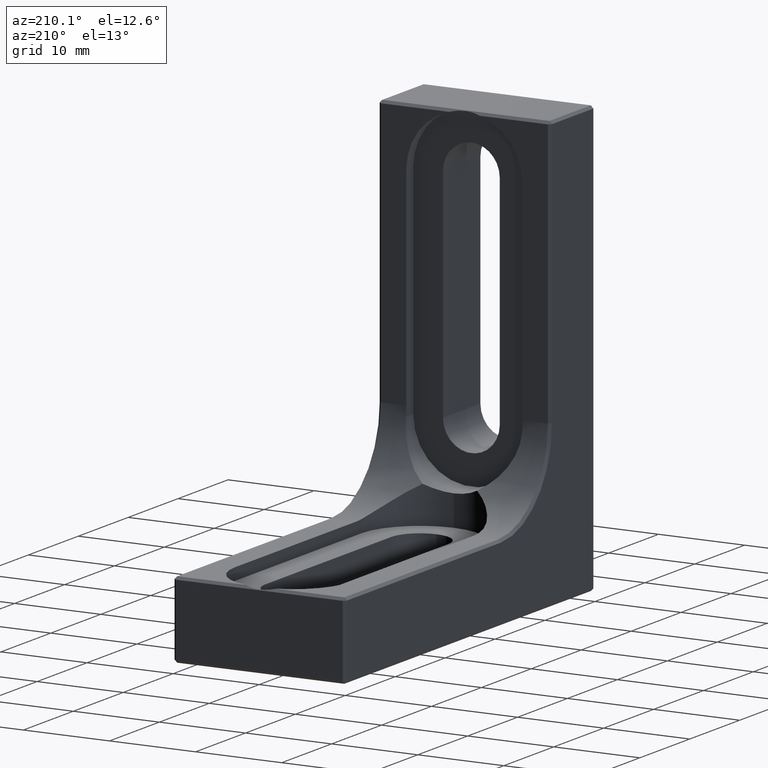
[diagram: clean part render]
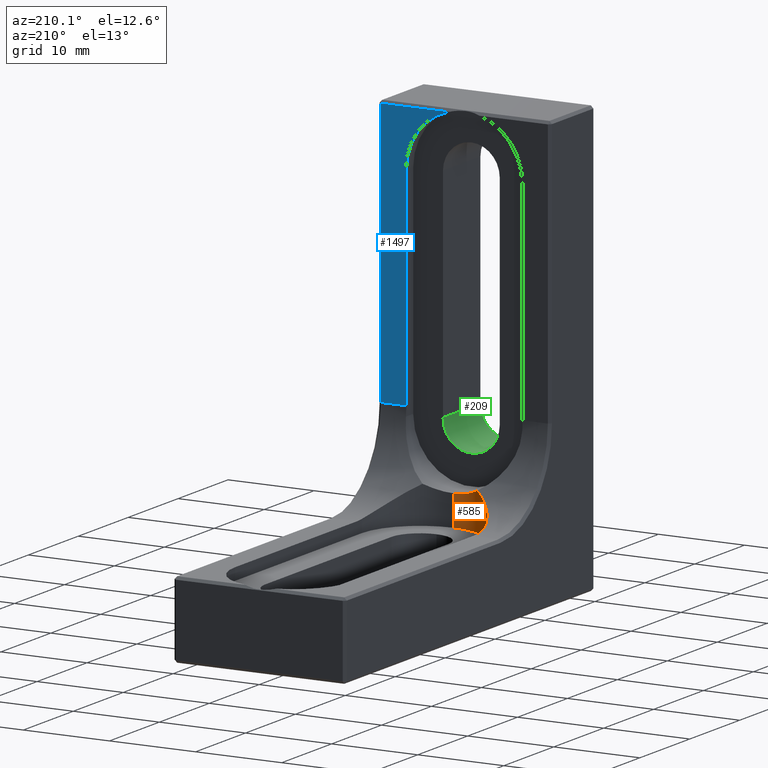
[diagram: same view with three faces highlighted in distinct colors, each labeled with its STEP entity id]
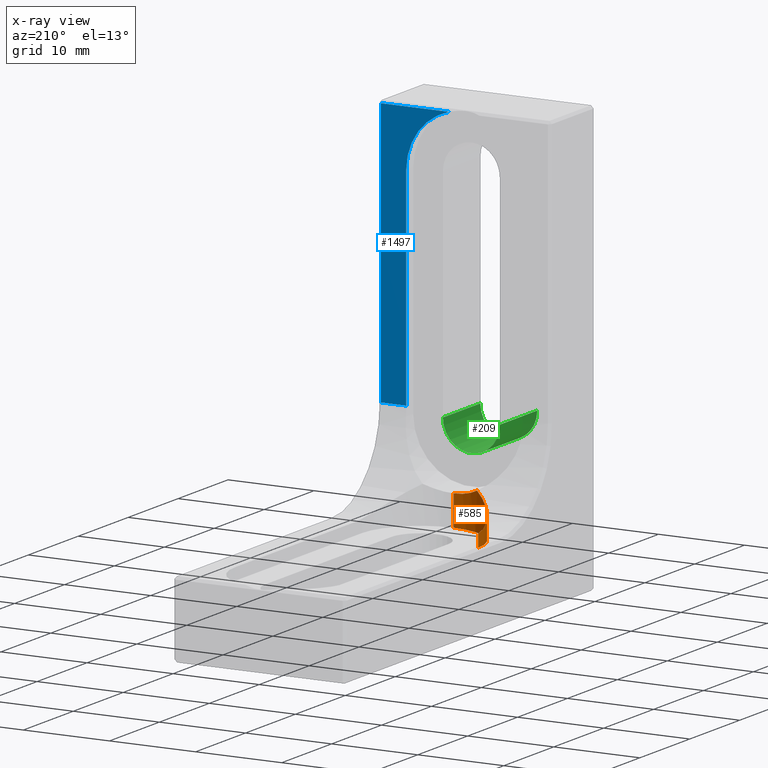
[diagram: x-ray of the same camera — body ghosted, the three highlighted faces saturated]
A machine part, auxiliary view with three faces highlighted in distinct colors.
The next image is the same camera in x-ray (body ghosted, the three faces saturated) — at least one of them is partly hidden behind the body in this view.
Their STEP definitions:

[orange] entity #585 — the highlighted cylindrical surface (partial cylindrical patch) has radius 6.75 mm, axis along (-0, 0, 1).
#6 =( BOUNDED_CURVE ( )  B_SPLINE_CURVE ( 3, ( #1779, #149, #741, #1630 ),
 .UNSPECIFIED., .F., .T. ) 
 B_SPLINE_CURVE_WITH_KNOTS ( ( 4, 4 ),
 ( 2.653270293399297763, 3.141592653589793116 ),
 .UNSPECIFIED. ) 
 CURVE ( )  GEOMETRIC_REPRESENTATION_ITEM ( )  RATIONAL_B_SPLINE_CURVE ( ( 1.000000000000000000, 0.9802269631457370958, 0.9802269631457370958, 1.000000000000000000 ) ) 
 REPRESENTATION_ITEM ( '' )  );
#11 = DIRECTION ( 'NONE',  ( -0.000000000000000000, 2.220446049250312588E-16, 1.000000000000000000 ) ) ;
#79 = CARTESIAN_POINT ( 'NONE',  ( 0.000000000000000000, 17.78999999999999204, 7.499999999999992895 ) ) ;
#84 = CARTESIAN_POINT ( 'NONE',  ( -6.750000000000000888, 17.78999999999999204, 8.961795936890807113 ) ) ;
#106 = CARTESIAN_POINT ( 'NONE',  ( -6.387361188721259353, 15.58445464853560658, 9.460258357192143919 ) ) ;
#108 = LINE ( 'NONE', #695, #1232 ) ;
#146 = CARTESIAN_POINT ( 'NONE',  ( -6.750000000000000000, 17.78999999999999204, 7.499999999999992895 ) ) ;
#149 = CARTESIAN_POINT ( 'NONE',  ( -2.186654130617969649, 11.30828214886161653, 11.30828214886161831 ) ) ;
#165 = LINE ( 'NONE', #146, #1387 ) ;
#200 = VERTEX_POINT ( 'NONE', #1851 ) ;
#221 = DIRECTION ( 'NONE',  ( -0.000000000000000000, -2.220446049250312588E-16, -1.000000000000000000 ) ) ;
#224 = ORIENTED_EDGE ( 'NONE', *, *, #978, .T. ) ;
#236 = CARTESIAN_POINT ( 'NONE',  ( -6.750000000000000000, 17.12887960274975896, 9.035636606320389674 ) ) ;
#248 = CARTESIAN_POINT ( 'NONE',  ( -4.383059929665648724, 12.64834758228266942, 11.09107686066964860 ) ) ;
#251 = CARTESIAN_POINT ( 'NONE',  ( 0.000000000000000000, 11.03999999999999204, 7.499999999999994671 ) ) ;
#260 = CARTESIAN_POINT ( 'NONE',  ( -4.810799125176307811, 13.04616023575184691, 10.78858837424539274 ) ) ;
#456 = EDGE_LOOP ( 'NONE', ( #833, #1566, #224, #1658, #1192 ) ) ;
#462 = CARTESIAN_POINT ( 'NONE',  ( 0.000000000000000000, 11.03999999999999382, 11.03999999999999559 ) ) ;
#484 = EDGE_CURVE ( 'NONE', #1532, #1276, #108, .T. ) ;
#532 = CARTESIAN_POINT ( 'NONE',  ( -3.427534819107754593, 11.96748157262245549, 11.69038280364659599 ) ) ;
#585 = ADVANCED_FACE ( 'NONE', ( #1495 ), #1170, .F. ) ;
#603 = EDGE_CURVE ( 'NONE', #727, #1276, #6, .T. ) ;
#673 = CARTESIAN_POINT ( 'NONE',  ( -5.387022360543826771, 13.71210831588100021, 10.34672199960680139 ) ) ;
#695 = CARTESIAN_POINT ( 'NONE',  ( 0.000000000000000000, 11.03999999999999382, 7.499999999999994671 ) ) ;
#723 = CARTESIAN_POINT ( 'NONE',  ( -6.750000000000000888, 17.78999999999999204, 8.961795936890807113 ) ) ;
#727 = VERTEX_POINT ( 'NONE', #798 ) ;
#741 = CARTESIAN_POINT ( 'NONE',  ( -1.109784929035580126, 11.03999999999999204, 11.03999999999999382 ) ) ;
#755 = EDGE_CURVE ( 'NONE', #1202, #727, #1520, .T. ) ;
#798 = CARTESIAN_POINT ( 'NONE',  ( -3.166728681516845612, 11.82893218813452307, 11.82893218813452307 ) ) ;
#833 = ORIENTED_EDGE ( 'NONE', *, *, #484, .F. ) ;
#860 = CARTESIAN_POINT ( 'NONE',  ( -6.277803622997867095, 15.29088126929008951, 9.569075195809359613 ) ) ;
#978 = EDGE_CURVE ( 'NONE', #200, #1202, #165, .T. ) ;
#1012 = CARTESIAN_POINT ( 'NONE',  ( -3.676618491906133102, 12.12157861182856422, 11.54443134155005524 ) ) ;
#1029 = DIRECTION ( 'NONE',  ( -0.000000000000000000, 2.220446049250312588E-16, 1.000000000000000000 ) ) ;
#1043 = EDGE_CURVE ( 'NONE', #1532, #200, #1714, .T. ) ;
#1170 = CYLINDRICAL_SURFACE ( 'NONE', #1291, 6.749999999999999112 ) ;
#1192 = ORIENTED_EDGE ( 'NONE', *, *, #603, .T. ) ;
#1193 = DIRECTION ( 'NONE',  ( 0.000000000000000000, -1.000000000000000000, 2.569960705150825891E-16 ) ) ;
#1202 = VERTEX_POINT ( 'NONE', #723 ) ;
#1203 = CARTESIAN_POINT ( 'NONE',  ( 0.000000000000000000, 17.78999999999999204, 7.499999999999992895 ) ) ;
#1232 = VECTOR ( 'NONE', #1274, 1000.000000000000000 ) ;
#1271 = CARTESIAN_POINT ( 'NONE',  ( -5.011439640458004163, 13.25847892750654644, 10.63888478068647103 ) ) ;
#1274 = DIRECTION ( 'NONE',  ( -0.000000000000000000, 2.220446049250312588E-16, 1.000000000000000000 ) ) ;
#1276 = VERTEX_POINT ( 'NONE', #462 ) ;
#1291 = AXIS2_PLACEMENT_3D ( 'NONE', #1203, #1029, #1193 ) ;
#1293 = CARTESIAN_POINT ( 'NONE',  ( -6.655048376745826388, 16.49613597570373713, 9.172323463693613732 ) ) ;
#1354 = DIRECTION ( 'NONE',  ( 0.000000000000000000, 1.000000000000000000, -3.854941057726238590E-16 ) ) ;
#1387 = VECTOR ( 'NONE', #11, 1000.000000000000000 ) ;
#1390 = CARTESIAN_POINT ( 'NONE',  ( -3.166728681516845612, 11.82893218813452307, 11.82893218813452307 ) ) ;
#1495 = FACE_OUTER_BOUND ( 'NONE', #456, .T. ) ;
#1520 = B_SPLINE_CURVE_WITH_KNOTS ( 'NONE', 3,
 ( #84, #236, #1293, #106, #860, #1580, #1600, #1556, #673, #1271, #260, #248, #1845, #1012, #532, #1390 ),
 .UNSPECIFIED., .F., .F.,
 ( 4, 2, 2, 2, 2, 2, 2, 4 ),
 ( 0.000000000000000000, 0.001962776800686934567, 0.002944165201030402718, 0.003925553601373870868, 0.004906942001717339019, 0.005888330402060807170, 0.006869718802404275321, 0.007851107202747745206 ),
 .UNSPECIFIED. ) ;
#1532 = VERTEX_POINT ( 'NONE', #251 ) ;
#1556 = CARTESIAN_POINT ( 'NONE',  ( -5.562899556602816986, 13.95498842064797707, 10.20342600525954424 ) ) ;
#1566 = ORIENTED_EDGE ( 'NONE', *, *, #1043, .T. ) ;
#1580 = CARTESIAN_POINT ( 'NONE',  ( -6.025522808257919749, 14.73230680965636097, 9.804823850799557761 ) ) ;
#1600 = CARTESIAN_POINT ( 'NONE',  ( -5.882272238261625041, 14.46553935117401934, 9.932330429819833384 ) ) ;
#1630 = CARTESIAN_POINT ( 'NONE',  ( 0.000000000000000000, 11.03999999999999382, 11.03999999999999559 ) ) ;
#1658 = ORIENTED_EDGE ( 'NONE', *, *, #755, .T. ) ;
#1714 = CIRCLE ( 'NONE', #1864, 6.749999999999999112 ) ;
#1779 = CARTESIAN_POINT ( 'NONE',  ( -3.166728681516845612, 11.82893218813452307, 11.82893218813452307 ) ) ;
#1845 = CARTESIAN_POINT ( 'NONE',  ( -4.154438907443558371, 12.46185192273856401, 11.24482945062318784 ) ) ;
#1851 = CARTESIAN_POINT ( 'NONE',  ( -6.750000000000000000, 17.78999999999999204, 7.499999999999992895 ) ) ;
#1864 = AXIS2_PLACEMENT_3D ( 'NONE', #79, #221, #1354 ) ;

[blue] entity #1497 — the highlighted planar face has unit normal (0, -1, -0).
#61 = DIRECTION ( 'NONE',  ( 0.000000000000000000, -1.000000000000000000, -1.266221515311537557E-16 ) ) ;
#114 = ORIENTED_EDGE ( 'NONE', *, *, #157, .T. ) ;
#157 = EDGE_CURVE ( 'NONE', #1745, #560, #1233, .T. ) ;
#205 = FACE_OUTER_BOUND ( 'NONE', #337, .T. ) ;
#262 = CARTESIAN_POINT ( 'NONE',  ( 9.699999999999999289, 8.899999999999993250, 49.69999999999999574 ) ) ;
#290 = ORIENTED_EDGE ( 'NONE', *, *, #1697, .T. ) ;
#303 = LINE ( 'NONE', #1647, #1369 ) ;
#311 = ORIENTED_EDGE ( 'NONE', *, *, #1898, .T. ) ;
#317 = EDGE_CURVE ( 'NONE', #446, #992, #820, .T. ) ;
#337 = EDGE_LOOP ( 'NONE', ( #311, #1141, #572, #290, #114 ) ) ;
#446 = VERTEX_POINT ( 'NONE', #262 ) ;
#464 = CIRCLE ( 'NONE', #1599, 6.749999999999999112 ) ;
#469 = CARTESIAN_POINT ( 'NONE',  ( 6.750000000000000000, 8.900000000000000355, 18.89999999999999503 ) ) ;
#560 = VERTEX_POINT ( 'NONE', #1773 ) ;
#565 = VECTOR ( 'NONE', #1838, 1000.000000000000000 ) ;
#572 = ORIENTED_EDGE ( 'NONE', *, *, #317, .T. ) ;
#629 = CARTESIAN_POINT ( 'NONE',  ( 1.783928249678215838, 8.899999999999995026, 49.69999999999999574 ) ) ;
#641 = DIRECTION ( 'NONE',  ( 0.000000000000000000, -1.000000000000000000, -1.266221515311537557E-16 ) ) ;
#653 = DIRECTION ( 'NONE',  ( 0.000000000000000000, 1.266221515311537557E-16, -1.000000000000000000 ) ) ;
#654 = CARTESIAN_POINT ( 'NONE',  ( 6.749999999999999112, 8.899999999999998579, 8.899999999999995026 ) ) ;
#749 = CARTESIAN_POINT ( 'NONE',  ( 10.00000000000000000, 8.899999999999993250, 49.69999999999999574 ) ) ;
#792 = PLANE ( 'NONE',  #822 ) ;
#820 = LINE ( 'NONE', #1847, #565 ) ;
#822 = AXIS2_PLACEMENT_3D ( 'NONE', #1370, #61, #653 ) ;
#992 = VERTEX_POINT ( 'NONE', #1474 ) ;
#1030 = LINE ( 'NONE', #749, #1872 ) ;
#1141 = ORIENTED_EDGE ( 'NONE', *, *, #1772, .T. ) ;
#1233 = LINE ( 'NONE', #654, #1344 ) ;
#1243 = CARTESIAN_POINT ( 'NONE',  ( 2.975891721928067571E-15, 8.899999999999995026, 43.18999999999999062 ) ) ;
#1253 = DIRECTION ( 'NONE',  ( 0.000000000000000000, 0.000000000000000000, -1.000000000000000000 ) ) ;
#1325 = DIRECTION ( 'NONE',  ( 1.000000000000000000, 0.000000000000000000, 0.000000000000000000 ) ) ;
#1333 = DIRECTION ( 'NONE',  ( -1.000000000000000000, 0.000000000000000000, 0.000000000000000000 ) ) ;
#1344 = VECTOR ( 'NONE', #1826, 1000.000000000000000 ) ;
#1369 = VECTOR ( 'NONE', #1333, 1000.000000000000000 ) ;
#1370 = CARTESIAN_POINT ( 'NONE',  ( 10.00000000000000000, 8.899999999999998579, 8.899999999999995026 ) ) ;
#1474 = CARTESIAN_POINT ( 'NONE',  ( 9.699999999999999289, 8.899999999999996803, 18.89999999999999503 ) ) ;
#1497 = ADVANCED_FACE ( 'NONE', ( #205 ), #792, .F. ) ;
#1599 = AXIS2_PLACEMENT_3D ( 'NONE', #1243, #641, #1253 ) ;
#1647 = CARTESIAN_POINT ( 'NONE',  ( -10.00000000000000000, 8.899999999999996803, 18.89999999999999503 ) ) ;
#1667 = VERTEX_POINT ( 'NONE', #629 ) ;
#1697 = EDGE_CURVE ( 'NONE', #992, #1745, #303, .T. ) ;
#1745 = VERTEX_POINT ( 'NONE', #469 ) ;
#1772 = EDGE_CURVE ( 'NONE', #1667, #446, #1030, .T. ) ;
#1773 = CARTESIAN_POINT ( 'NONE',  ( 6.750000000000003553, 8.899999999999995026, 43.18999999999999062 ) ) ;
#1826 = DIRECTION ( 'NONE',  ( 1.365923996832131609E-16, -1.266221515311537557E-16, 1.000000000000000000 ) ) ;
#1838 = DIRECTION ( 'NONE',  ( -0.000000000000000000, 1.266221515311537557E-16, -1.000000000000000000 ) ) ;
#1847 = CARTESIAN_POINT ( 'NONE',  ( 9.699999999999999289, 8.899999999999996803, 18.89999999999999503 ) ) ;
#1872 = VECTOR ( 'NONE', #1325, 1000.000000000000000 ) ;
#1898 = EDGE_CURVE ( 'NONE', #560, #1667, #464, .T. ) ;

[green] entity #209 — the highlighted cylindrical surface (edge-blend (fillet) strip) has radius 3.3 mm, axis along (-0, 1, -0).
#100 = CARTESIAN_POINT ( 'NONE',  ( 3.299999999999999822, 7.500000000000000000, 17.78999999999999204 ) ) ;
#101 = CARTESIAN_POINT ( 'NONE',  ( 0.000000000000000000, -6.938893903907228378E-15, 17.78999999999999204 ) ) ;
#209 = ADVANCED_FACE ( 'NONE', ( #1278 ), #266, .F. ) ;
#242 = CARTESIAN_POINT ( 'NONE',  ( -3.299999999999999822, -6.938893903907228378E-15, 17.78999999999999204 ) ) ;
#243 = EDGE_CURVE ( 'NONE', #715, #1472, #800, .T. ) ;
#244 = DIRECTION ( 'NONE',  ( 0.000000000000000000, 0.000000000000000000, 1.000000000000000000 ) ) ;
#266 = CYLINDRICAL_SURFACE ( 'NONE', #1878, 3.300000000000000711 ) ;
#403 = DIRECTION ( 'NONE',  ( 0.000000000000000000, 0.000000000000000000, 1.000000000000000000 ) ) ;
#414 = CARTESIAN_POINT ( 'NONE',  ( 3.299999999999999822, -6.938893903907228378E-15, 17.78999999999999204 ) ) ;
#415 = DIRECTION ( 'NONE',  ( -0.000000000000000000, 1.000000000000000000, -0.000000000000000000 ) ) ;
#506 = CARTESIAN_POINT ( 'NONE',  ( 0.000000000000000000, 7.500000000000000000, 17.78999999999999204 ) ) ;
#521 = CARTESIAN_POINT ( 'NONE',  ( 3.299999999999999822, -6.938893903907228378E-15, 17.78999999999999204 ) ) ;
#559 = CARTESIAN_POINT ( 'NONE',  ( 0.000000000000000000, -6.938893903907228378E-15, 17.78999999999999204 ) ) ;
#608 = VECTOR ( 'NONE', #882, 1000.000000000000000 ) ;
#674 = DIRECTION ( 'NONE',  ( 0.000000000000000000, 0.000000000000000000, 1.000000000000000000 ) ) ;
#715 = VERTEX_POINT ( 'NONE', #521 ) ;
#736 = VECTOR ( 'NONE', #1061, 1000.000000000000000 ) ;
#800 = CIRCLE ( 'NONE', #804, 3.300000000000000711 ) ;
#804 = AXIS2_PLACEMENT_3D ( 'NONE', #559, #1887, #244 ) ;
#811 = LINE ( 'NONE', #242, #736 ) ;
#855 = LINE ( 'NONE', #414, #608 ) ;
#882 = DIRECTION ( 'NONE',  ( -0.000000000000000000, 1.000000000000000000, -0.000000000000000000 ) ) ;
#936 = DIRECTION ( 'NONE',  ( -0.000000000000000000, -1.000000000000000000, -0.000000000000000000 ) ) ;
#1018 = CARTESIAN_POINT ( 'NONE',  ( -3.299999999999999822, 7.500000000000000000, 17.78999999999999204 ) ) ;
#1019 = VERTEX_POINT ( 'NONE', #100 ) ;
#1055 = EDGE_CURVE ( 'NONE', #1472, #1182, #811, .T. ) ;
#1061 = DIRECTION ( 'NONE',  ( -0.000000000000000000, 1.000000000000000000, -0.000000000000000000 ) ) ;
#1147 = EDGE_CURVE ( 'NONE', #715, #1019, #855, .T. ) ;
#1182 = VERTEX_POINT ( 'NONE', #1018 ) ;
#1224 = CARTESIAN_POINT ( 'NONE',  ( -3.299999999999999822, -6.938893903907228378E-15, 17.78999999999999204 ) ) ;
#1278 = FACE_OUTER_BOUND ( 'NONE', #1297, .T. ) ;
#1297 = EDGE_LOOP ( 'NONE', ( #1755, #1866, #1410, #1799 ) ) ;
#1410 = ORIENTED_EDGE ( 'NONE', *, *, #243, .F. ) ;
#1472 = VERTEX_POINT ( 'NONE', #1224 ) ;
#1629 = CIRCLE ( 'NONE', #1875, 3.300000000000000711 ) ;
#1755 = ORIENTED_EDGE ( 'NONE', *, *, #1884, .F. ) ;
#1799 = ORIENTED_EDGE ( 'NONE', *, *, #1147, .T. ) ;
#1866 = ORIENTED_EDGE ( 'NONE', *, *, #1055, .F. ) ;
#1875 = AXIS2_PLACEMENT_3D ( 'NONE', #506, #936, #674 ) ;
#1878 = AXIS2_PLACEMENT_3D ( 'NONE', #101, #415, #403 ) ;
#1884 = EDGE_CURVE ( 'NONE', #1182, #1019, #1629, .T. ) ;
#1887 = DIRECTION ( 'NONE',  ( 0.000000000000000000, 1.000000000000000000, 0.000000000000000000 ) ) ;